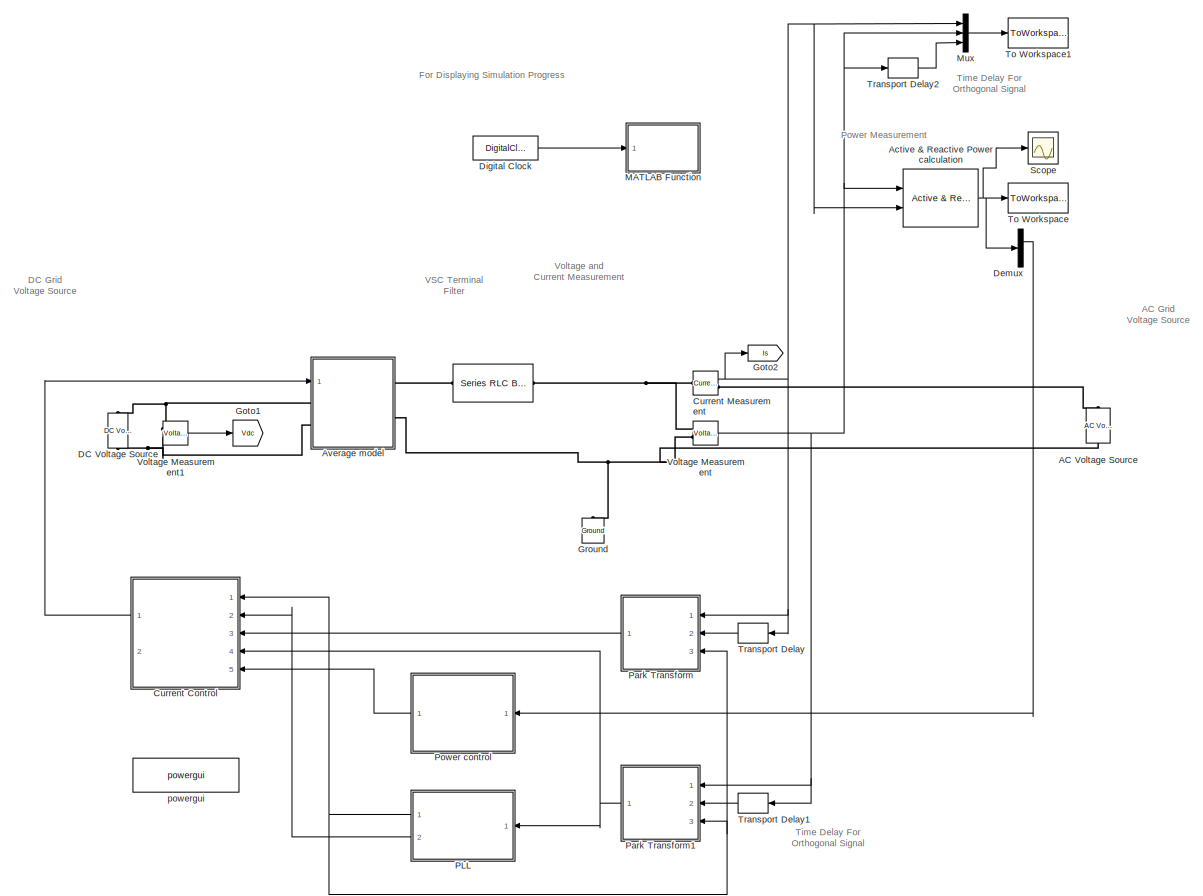
[diagram: root canvas - part 1/2, most of the canvas]
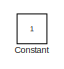
[diagram: root canvas - part 2/2, middle left region]
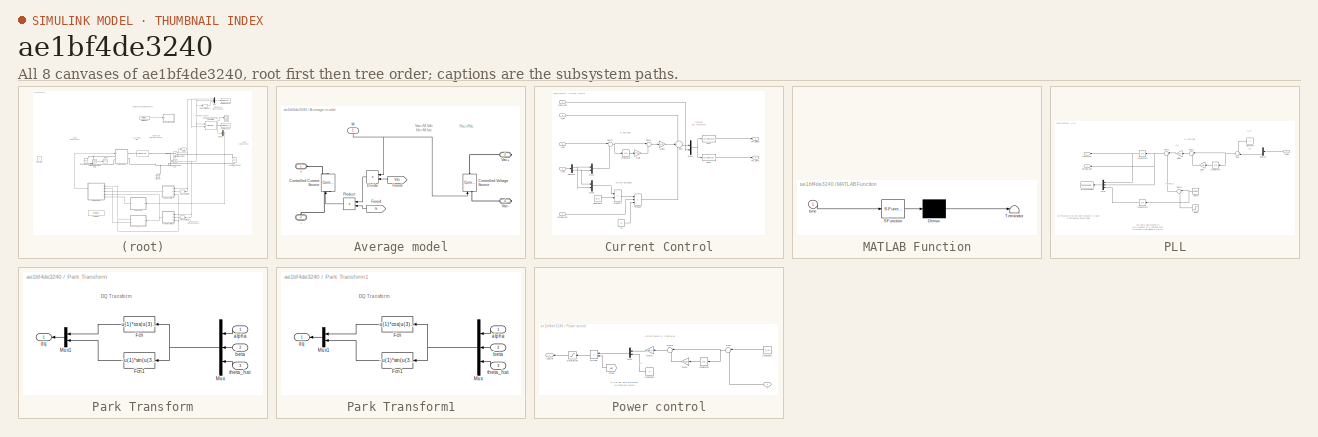
[diagram: thumbnail index - all 8 canvases of the model, root first then tree order]
MODEL slx_ae1bf4de3240
KIND model
CONFIG AbsTol = auto
CONFIG EnableMultiTasking = on
CONFIG FixedStep = 1e-5
CONFIG MaxStep = 1e-5
CONFIG MinStep = auto
CONFIG RelTol = 1e-5
CONFIG SampleTimeConstraint = Unconstrained
CONFIG Solver = FixedStepAuto
CONFIG SolverName = FixedStepAuto
CONFIG StartTime = 0.0
CONFIG StopTime = sim_time
BLOCK [Reference]    REF=powerlib/Elements/Series RLC Branch
  Ports = [0, 0, 0, 0, 0, 1, 1]
  SourceBlock = powerlib/Elements/Series RLC Branch
  SourceProductBaseCode = PS
  SourceProductName = Simscape Power Systems
  SourceType = Series RLC Branch
BLOCK [Reference] AC Voltage Source  REF=powerlib/Electrical
Sources/AC Voltage Source
  Ports = [0, 0, 0, 0, 0, 1, 1]
  SourceBlock = powerlib/Electrical\nSources/AC Voltage Source
  SourceProductBaseCode = PS
  SourceProductName = Simscape Power Systems
  SourceType = AC Voltage Source
BLOCK [Reference] Active & Reactive Power calculation  REF=powerlib_extras/Measurements/Active & Reactive
Power
  Ports = [2, 1]
  SourceBlock = powerlib_extras/Measurements/Active & Reactive\nPower
  SourceType = Active & Reactive Power
BLOCK [SubSystem] Average model
  Ports = [1, 0, 0, 0, 0, 2, 2]
  RequestExecContextInheritance = off
  Variant = off
BLOCK [PMIOPort] Average model/+
  Port = 1
  Side = Left
BLOCK [PMIOPort] Average model/-
  Port = 3
  Side = Left
BLOCK [Reference] Average model/Controlled Current Source  REF=powerlib/Electrical
Sources/Controlled Current Source
  Ports = [1, 0, 0, 0, 0, 1, 1]
  SourceBlock = powerlib/Electrical\nSources/Controlled Current Source
  SourceProductBaseCode = PS
  SourceProductName = Simscape Power Systems
  SourceType = Controlled Current Source
BLOCK [Reference] Average model/Controlled Voltage Source  REF=powerlib/Electrical
Sources/Controlled Voltage Source
  Ports = [1, 0, 0, 0, 0, 1, 1]
  SourceBlock = powerlib/Electrical\nSources/Controlled Voltage Source
  SourceProductBaseCode = PS
  SourceProductName = Simscape Power Systems
  SourceType = Controlled Voltage Source
BLOCK [Product] Average model/Divide
  InputSameDT = off
  Inputs = */
  OutDataTypeStr = Inherit: Inherit via internal rule
  Ports = [2, 1]
  RndMeth = Floor
  SaturateOnIntegerOverflow = off
BLOCK [From] Average model/From4
  GotoTag = Is
  TagVisibility = global
BLOCK [From] Average model/From6
  GotoTag = Vdc
  TagVisibility = global
BLOCK [Inport] Average model/M
  IconDisplay = Port number
BLOCK [Product] Average model/Product
  InputSameDT = off
  OutDataTypeStr = Inherit: Inherit via internal rule
  Ports = [2, 1]
  SaturateOnIntegerOverflow = off
BLOCK [PMIOPort] Average model/Vac+
  Port = 2
  Side = Right
BLOCK [PMIOPort] Average model/Vac-
  Port = 4
  Side = Right
BLOCK [Constant] Constant
  IOType = siggen
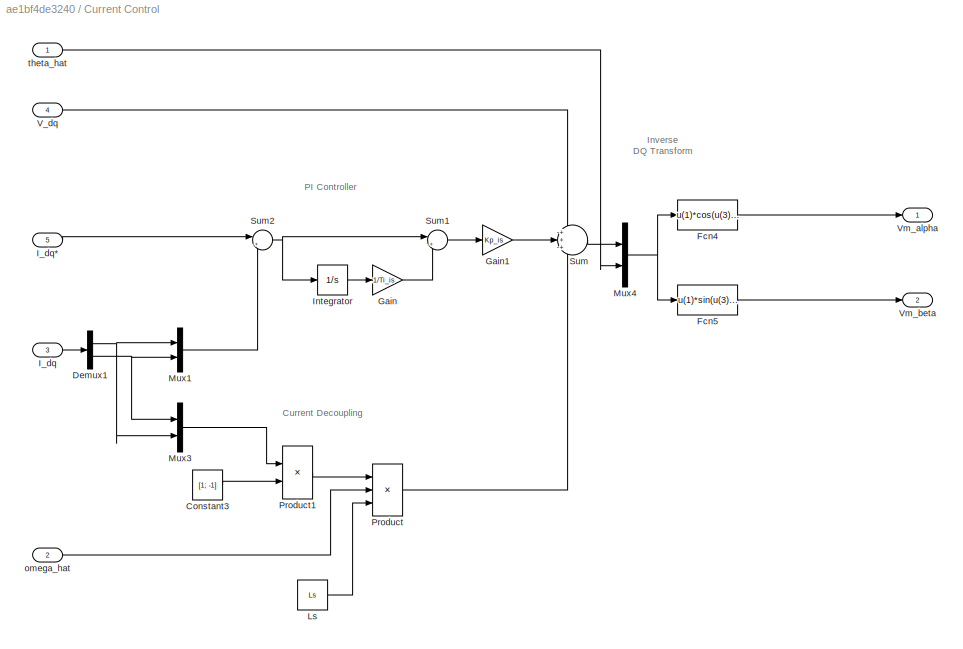
BLOCK [SubSystem] Current Control
  Ports = [5, 2]
  RequestExecContextInheritance = off
  Variant = off
BLOCK [Constant] Current Control/Constant3
  Value = [1; -1]
BLOCK [Demux] Current Control/Demux1
  DisplayOption = bar
  Outputs = 2
  Ports = [1, 2]
BLOCK [Fcn] Current Control/Fcn4
  Expr = u(1)*cos(u(3)) - u(2)*sin(u(3))
BLOCK [Fcn] Current Control/Fcn5
  Expr = u(1)*sin(u(3)) + u(2)*cos(u(3))
BLOCK [Gain] Current Control/Gain
  Gain = 1/Ti_is
  OutDataTypeStr = Inherit: Inherit via internal rule
  ParamDataTypeStr = Inherit: Inherit via internal rule
  SaturateOnIntegerOverflow = off
BLOCK [Gain] Current Control/Gain1
  Gain = Kp_is
  OutDataTypeStr = Inherit: Inherit via internal rule
  ParamDataTypeStr = Inherit: Inherit via internal rule
  SaturateOnIntegerOverflow = off
BLOCK [Inport] Current Control/I_dq
  IconDisplay = Port number
  Port = 3
BLOCK [Inport] Current Control/I_dq*
  IconDisplay = Port number
  Port = 5
BLOCK [Integrator] Current Control/Integrator
  Ports = [1, 1]
BLOCK [Constant] Current Control/Ls
  Value = Ls
BLOCK [Mux] Current Control/Mux1
  DisplayOption = bar
  Inputs = 2
  Ports = [2, 1]
BLOCK [Mux] Current Control/Mux3
  DisplayOption = bar
  Inputs = 2
  Ports = [2, 1]
BLOCK [Mux] Current Control/Mux4
  DisplayOption = bar
  Inputs = 2
  Ports = [2, 1]
BLOCK [Product] Current Control/Product
  InputSameDT = off
  Inputs = 3
  OutDataTypeStr = Inherit: Inherit via internal rule
  Ports = [3, 1]
  RndMeth = Floor
  SaturateOnIntegerOverflow = off
BLOCK [Product] Current Control/Product1
  InputSameDT = off
  OutDataTypeStr = Inherit: Inherit via internal rule
  Ports = [2, 1]
  RndMeth = Floor
  SaturateOnIntegerOverflow = off
BLOCK [Sum] Current Control/Sum
  IconShape = round
  InputSameDT = off
  Inputs = +++
  OutDataTypeStr = Inherit: Inherit via internal rule
  Ports = [3, 1]
  SaturateOnIntegerOverflow = off
BLOCK [Sum] Current Control/Sum1
  IconShape = round
  InputSameDT = off
  Inputs = |++
  OutDataTypeStr = Inherit: Inherit via internal rule
  Ports = [2, 1]
  SaturateOnIntegerOverflow = off
BLOCK [Sum] Current Control/Sum2
  IconShape = round
  InputSameDT = off
  Inputs = |+-
  OutDataTypeStr = Inherit: Inherit via internal rule
  Ports = [2, 1]
  SaturateOnIntegerOverflow = off
BLOCK [Inport] Current Control/V_dq
  IconDisplay = Port number
  Port = 4
BLOCK [Outport] Current Control/Vm_alpha
  IconDisplay = Port number
BLOCK [Outport] Current Control/Vm_beta
  IconDisplay = Port number
  Port = 2
BLOCK [Inport] Current Control/omega_hat
  IconDisplay = Port number
  Port = 2
BLOCK [Inport] Current Control/theta_hat
  IconDisplay = Port number
BLOCK [Reference] Current Measurement  REF=powerlib/Measurements/Current Measurement
  Ports = [0, 1, 0, 0, 0, 1, 1]
  SourceBlock = powerlib/Measurements/Current Measurement
  SourceProductBaseCode = PS
  SourceProductName = Simscape Power Systems
  SourceType = Current Measurement
  UserDataPersistent = on
BLOCK [Reference] DC Voltage Source  REF=powerlib/Electrical
Sources/DC Voltage Source
  Ports = [0, 0, 0, 0, 0, 1, 1]
  SourceBlock = powerlib/Electrical\nSources/DC Voltage Source
  SourceProductBaseCode = PS
  SourceProductName = Simscape Power Systems
  SourceType = DC Voltage Source
BLOCK [Demux] Demux
  DisplayOption = bar
  Outputs = 2
  Ports = [1, 2]
BLOCK [DigitalClock] Digital Clock
  SampleTime = 0.01
BLOCK [Goto] Goto1
  GotoTag = Vdc
  TagVisibility = global
BLOCK [Goto] Goto2
  GotoTag = Is
  TagVisibility = global
BLOCK [Reference] Ground  REF=powerlib/Elements/Ground
  Ports = [0, 0, 0, 0, 0, 1]
  SourceBlock = powerlib/Elements/Ground
  SourceProductBaseCode = PS
  SourceProductName = Simscape Power Systems
  SourceType = Ground
BLOCK [SubSystem] MATLAB Function
  ErrorFcn = Stateflow.Translate.translate
  PermitHierarchicalResolution = ExplicitOnly
  Ports = [1]
  RequestExecContextInheritance = off
  SFBlockType = MATLAB Function
  TreatAsAtomicUnit = on
  Variant = off
BLOCK [Demux] MATLAB Function/ Demux 
  Outputs = 1
  Ports = [1, 1]
BLOCK [S-Function] MATLAB Function/ SFunction 
  EnableBusSupport = on
  FunctionName = sf_sfun
  PortCounts = [1 1]
  Ports = [1, 1]
  SFcnIsStateOwnerBlock = off
  SFunctionDeploymentMode = off
  Tag = Stateflow S-Function VSC_Provoked_Cycle_Slip_AVG 2
BLOCK [Terminator] MATLAB Function/ Terminator 
BLOCK [Inport] MATLAB Function/time
  IconDisplay = Port number
BLOCK [Mux] Mux
  DisplayOption = bar
  Inputs = 3
  Ports = [3, 1]
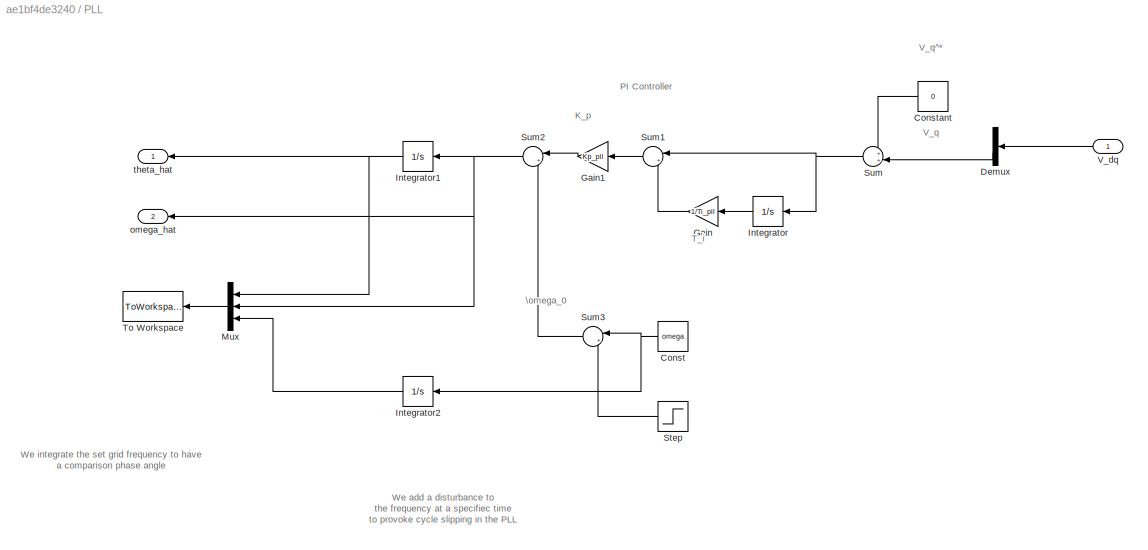
BLOCK [SubSystem] PLL
  Ports = [1, 2]
  RequestExecContextInheritance = off
  Variant = off
BLOCK [Constant] PLL/Const 
  Value = omega
BLOCK [Constant] PLL/Constant
  Value = 0
BLOCK [Demux] PLL/Demux
  DisplayOption = bar
  Outputs = 2
  Ports = [1, 2]
BLOCK [Gain] PLL/Gain
  Gain = 1/Ti_pll
  OutDataTypeStr = Inherit: Inherit via internal rule
  ParamDataTypeStr = Inherit: Inherit via internal rule
  SaturateOnIntegerOverflow = off
BLOCK [Gain] PLL/Gain1
  Gain = Kp_pll
  OutDataTypeStr = Inherit: Inherit via internal rule
  ParamDataTypeStr = Inherit: Inherit via internal rule
  SaturateOnIntegerOverflow = off
BLOCK [Integrator] PLL/Integrator
  Ports = [1, 1]
BLOCK [Integrator] PLL/Integrator1
  Ports = [1, 1]
BLOCK [Integrator] PLL/Integrator2
  Ports = [1, 1]
BLOCK [Mux] PLL/Mux
  DisplayOption = bar
  Inputs = 3
  Ports = [3, 1]
BLOCK [Step] PLL/Step
  After = omega0_step
  SampleTime = 0
  Time = omega0_step_time
BLOCK [Sum] PLL/Sum
  IconShape = round
  InputSameDT = off
  Inputs = ++|
  OutDataTypeStr = Inherit: Inherit via internal rule
  Ports = [2, 1]
  SaturateOnIntegerOverflow = off
BLOCK [Sum] PLL/Sum1
  IconShape = round
  InputSameDT = off
  Inputs = |++
  OutDataTypeStr = Inherit: Inherit via internal rule
  Ports = [2, 1]
  SaturateOnIntegerOverflow = off
BLOCK [Sum] PLL/Sum2
  IconShape = round
  InputSameDT = off
  Inputs = |++
  OutDataTypeStr = Inherit: Inherit via internal rule
  Ports = [2, 1]
  SaturateOnIntegerOverflow = off
BLOCK [Sum] PLL/Sum3
  IconShape = round
  InputSameDT = off
  Inputs = |++
  OutDataTypeStr = Inherit: Inherit via internal rule
  Ports = [2, 1]
  SaturateOnIntegerOverflow = off
BLOCK [ToWorkspace] PLL/To Workspace
  FixptAsFi = on
  MaxDataPoints = inf
  Ports = [1]
  SampleTime = -1
  Save2DSignal = 3-D array (concatenate along third dimension)
  SaveFormat = Timeseries
  VariableName = pll
BLOCK [Inport] PLL/V_dq
  IconDisplay = Port number
BLOCK [Outport] PLL/omega_hat
  IconDisplay = Port number
  Port = 2
BLOCK [Outport] PLL/theta_hat
  IconDisplay = Port number
BLOCK [SubSystem] Park Transform
  Ports = [3, 1]
  RequestExecContextInheritance = off
  Variant = off
BLOCK [Fcn] Park Transform/Fcn
  Expr = u(1)*cos(u(3)) + u(2)*sin(u(3))
BLOCK [Fcn] Park Transform/Fcn1
  Expr = -u(1)*sin(u(3)) + u(2)*cos(u(3))
BLOCK [Mux] Park Transform/Mux
  DisplayOption = bar
  Inputs = 3
  Ports = [3, 1]
BLOCK [Mux] Park Transform/Mux1
  DisplayOption = bar
  Inputs = 2
  Ports = [2, 1]
BLOCK [Inport] Park Transform/alpha
  IconDisplay = Port number
BLOCK [Inport] Park Transform/beta
  IconDisplay = Port number
  Port = 2
BLOCK [Outport] Park Transform/dq 
  IconDisplay = Port number
BLOCK [Inport] Park Transform/theta_hat
  IconDisplay = Port number
  Port = 3
BLOCK [SubSystem] Park Transform1
  Ports = [3, 1]
  RequestExecContextInheritance = off
  Variant = off
BLOCK [Fcn] Park Transform1/Fcn
  Expr = u(1)*cos(u(3)) + u(2)*sin(u(3))
BLOCK [Fcn] Park Transform1/Fcn1
  Expr = -u(1)*sin(u(3)) + u(2)*cos(u(3))
BLOCK [Mux] Park Transform1/Mux
  DisplayOption = bar
  Inputs = 3
  Ports = [3, 1]
BLOCK [Mux] Park Transform1/Mux1
  DisplayOption = bar
  Inputs = 2
  Ports = [2, 1]
BLOCK [Inport] Park Transform1/alpha
  IconDisplay = Port number
BLOCK [Inport] Park Transform1/beta
  IconDisplay = Port number
  Port = 2
BLOCK [Outport] Park Transform1/dq 
  IconDisplay = Port number
BLOCK [Inport] Park Transform1/theta_hat
  IconDisplay = Port number
  Port = 3
BLOCK [SubSystem] Power control
  Ports = [1, 1]
  RequestExecContextInheritance = off
  Variant = off
BLOCK [Constant] Power control/Constant1
  Value = P_ref
BLOCK [Constant] Power control/Constant2
  Value = 0
BLOCK [Product] Power control/Divide
  InputSameDT = off
  Inputs = */
  OutDataTypeStr = Inherit: Inherit via internal rule
  Ports = [2, 1]
  RndMeth = Floor
  SaturateOnIntegerOverflow = off
BLOCK [From] Power control/From
  GotoTag = Vdc
  TagVisibility = global
BLOCK [Gain] Power control/Gain
  Gain = 1/(Ti_p)
  OutDataTypeStr = Inherit: Inherit via internal rule
  ParamDataTypeStr = Inherit: Inherit via internal rule
  SaturateOnIntegerOverflow = off
BLOCK [Gain] Power control/Gain1
  Gain = Gain_p
  OutDataTypeStr = Inherit: Inherit via internal rule
  ParamDataTypeStr = Inherit: Inherit via internal rule
  SaturateOnIntegerOverflow = off
BLOCK [Outport] Power control/I_dq_ref
  IconDisplay = Port number
BLOCK [Integrator] Power control/Integrator
  Ports = [1, 1]
BLOCK [Mux] Power control/Mux1
  DisplayOption = bar
  Inputs = 2
  Ports = [2, 1]
BLOCK [Inport] Power control/P
  IconDisplay = Port number
BLOCK [Saturate] Power control/Saturation
  InputPortMap = u0
  LowerLimit = -cur_sat
  Ports = [1, 1]
  UpperLimit = cur_sat
BLOCK [Sum] Power control/Sum
  IconShape = round
  InputSameDT = off
  Inputs = |+-
  OutDataTypeStr = Inherit: Inherit via internal rule
  Ports = [2, 1]
  SaturateOnIntegerOverflow = off
BLOCK [Sum] Power control/Sum2
  IconShape = round
  InputSameDT = off
  Inputs = |++
  OutDataTypeStr = Inherit: Inherit via internal rule
  Ports = [2, 1]
  SaturateOnIntegerOverflow = off
BLOCK [Scope] Scope
  NumInputPorts = 1
  Ports = [1]
  ScopeSpecificationString = Simulink.scopes.TimeScopeBlockCfg('CurrentConfiguration', extmgr.ConfigurationSet(extmgr.Configuration('Core','General UI',true),extmgr.Configuration('Core','Source UI',true),extmgr.Configuration('Sources','WiredSimulink',true),extmgr.Configuration('Visuals','Time Domain',true,'SerializedDisplays',{struct('MinYLimReal','-218.02915','MaxYLimReal','1135.44827','YLabelReal','','MinYLimMag',' 0.00000'...<+1443ch>
BLOCK [ToWorkspace] To Workspace
  FixptAsFi = on
  MaxDataPoints = inf
  Ports = [1]
  SampleTime = -1
  Save2DSignal = 3-D array (concatenate along third dimension)
  SaveFormat = Timeseries
  VariableName = S
BLOCK [ToWorkspace] To Workspace1
  FixptAsFi = on
  MaxDataPoints = inf
  Ports = [1]
  SampleTime = -1
  Save2DSignal = 3-D array (concatenate along third dimension)
  SaveFormat = Timeseries
  VariableName = measurements
BLOCK [TransportDelay] Transport Delay
  DelayTime = 1/(4*f_grid)
  Ports = [1, 1]
BLOCK [TransportDelay] Transport Delay1
  DelayTime = 1/(4*f_grid)
  Ports = [1, 1]
BLOCK [TransportDelay] Transport Delay2
  DelayTime = 1/(4*f_grid)
  Ports = [1, 1]
BLOCK [Reference] Voltage Measurement  REF=powerlib/Measurements/Voltage Measurement
  Ports = [0, 1, 0, 0, 0, 2]
  SourceBlock = powerlib/Measurements/Voltage Measurement
  SourceProductBaseCode = PS
  SourceProductName = Simscape Power Systems
  SourceType = Voltage Measurement
  UserDataPersistent = on
BLOCK [Reference] Voltage Measurement1  REF=powerlib/Measurements/Voltage Measurement
  Ports = [0, 1, 0, 0, 0, 2]
  SourceBlock = powerlib/Measurements/Voltage Measurement
  SourceProductBaseCode = PS
  SourceProductName = Simscape Power Systems
  SourceType = Voltage Measurement
  UserDataPersistent = on
BLOCK [Reference] powergui  REF=powerlib/powergui
  Ports = []
  Priority = 1
  SourceBlock = powerlib/powergui
  SourceProductBaseCode = PS
  SourceProductName = Simscape Power Systems
  SourceType = PSB option menu block
ANNOTATION (root): DC Grid Voltage Source
ANNOTATION (root): Time Delay For Orthogonal Signal
ANNOTATION (root): VSC Terminal Filter
ANNOTATION (root): Voltage and Current Measurement
ANNOTATION (root): AC Grid Voltage Source
ANNOTATION (root): For Displaying Simulation Progress
ANNOTATION (root): Power Measurement
ANNOTATION Average model: Pac=Pdc
ANNOTATION Average model: Vac=M.Vdc Idc=M.Iac
ANNOTATION Current Control: Current Decoupling
ANNOTATION Current Control: Inverse DQ Transform
ANNOTATION Current Control: PI Controller
ANNOTATION PLL: PI Controller
ANNOTATION PLL: We add a disturbance to the frequency at a specifiec time to provoke cycle slipping in the PLL
ANNOTATION PLL: We integrate the set grid frequency to have a comparison phase angle
ANNOTATION PLL: K_p
ANNOTATION PLL: T_i
ANNOTATION PLL: V_q
ANNOTATION PLL: V_q^*
ANNOTATION PLL: \omega_0
ANNOTATION Park Transform: DQ Transform
ANNOTATION Park Transform1: DQ Transform
ANNOTATION Power control: Active Power PI Controller
ANNOTATION Power control: Q-Current Zero Reference (0 Reactive Power)
ANNOTATION Power control: Q^*
NET Active & Reactive Power calculation:1 -> Demux:1, Scope:1, To Workspace:1
LINE Average model/Divide:1 -> Average model/Product:1
LINE Average model/From4:1 -> Average model/Product:2
LINE Average model/From6:1 -> Average model/Divide:2
NET Average model/M:1 -> Average model/Controlled Voltage Source:1, Average model/Divide:1
LINE Average model/Product:1 -> Average model/Controlled Current Source:1
LINE Current Control/Constant3:1 -> Current Control/Product1:2
NET Current Control/Demux1:1 -> Current Control/Mux1:1, Current Control/Mux3:2
NET Current Control/Demux1:2 -> Current Control/Mux1:2, Current Control/Mux3:1
LINE Current Control/Fcn4:1 -> Current Control/Vm_alpha:1
LINE Current Control/Fcn5:1 -> Current Control/Vm_beta:1
LINE Current Control/Gain1:1 -> Current Control/Sum:2
LINE Current Control/Gain:1 -> Current Control/Sum1:2
LINE Current Control/I_dq*:1 -> Current Control/Sum2:1
LINE Current Control/I_dq:1 -> Current Control/Demux1:1
LINE Current Control/Integrator:1 -> Current Control/Gain:1
LINE Current Control/Ls:1 -> Current Control/Product:3
LINE Current Control/Mux1:1 -> Current Control/Sum2:2
LINE Current Control/Mux3:1 -> Current Control/Product1:1
NET Current Control/Mux4:1 -> Current Control/Fcn4:1, Current Control/Fcn5:1
LINE Current Control/Product1:1 -> Current Control/Product:1
LINE Current Control/Product:1 -> Current Control/Sum:3
LINE Current Control/Sum1:1 -> Current Control/Gain1:1
NET Current Control/Sum2:1 -> Current Control/Integrator:1, Current Control/Sum1:1
LINE Current Control/Sum:1 -> Current Control/Mux4:1
LINE Current Control/V_dq:1 -> Current Control/Sum:1
LINE Current Control/omega_hat:1 -> Current Control/Product:2
LINE Current Control/theta_hat:1 -> Current Control/Mux4:2
LINE Current Control:1 -> Average model:1
NET Current Measurement:1 -> Active & Reactive Power calculation:2, Goto2:1, Mux:1, Park Transform:1, Transport Delay:1
LINE Demux:1 -> Power control:1
LINE Digital Clock:1 -> MATLAB Function:1
LINE Mux:1 -> To Workspace1:1
NET PLL/Const :1 -> PLL/Integrator2:1, PLL/Sum3:1
LINE PLL/Constant:1 -> PLL/Sum:1
LINE PLL/Demux:2 -> PLL/Sum:2
LINE PLL/Gain1:1 -> PLL/Sum2:1
LINE PLL/Gain:1 -> PLL/Sum1:2
NET PLL/Integrator1:1 -> PLL/Mux:1, PLL/theta_hat:1
LINE PLL/Integrator2:1 -> PLL/Mux:3
LINE PLL/Integrator:1 -> PLL/Gain:1
LINE PLL/Mux:1 -> PLL/To Workspace:1
LINE PLL/Step:1 -> PLL/Sum3:2
LINE PLL/Sum1:1 -> PLL/Gain1:1
NET PLL/Sum2:1 -> PLL/Integrator1:1, PLL/Mux:2, PLL/omega_hat:1
LINE PLL/Sum3:1 -> PLL/Sum2:2
NET PLL/Sum:1 -> PLL/Integrator:1, PLL/Sum1:1
LINE PLL/V_dq:1 -> PLL/Demux:1
NET PLL:1 -> Current Control:1, Park Transform1:3, Park Transform:3
LINE PLL:2 -> Current Control:2
LINE Park Transform/Fcn1:1 -> Park Transform/Mux1:2
LINE Park Transform/Fcn:1 -> Park Transform/Mux1:1
LINE Park Transform/Mux1:1 -> Park Transform/dq :1
NET Park Transform/Mux:1 -> Park Transform/Fcn1:1, Park Transform/Fcn:1
LINE Park Transform/alpha:1 -> Park Transform/Mux:1
LINE Park Transform/beta:1 -> Park Transform/Mux:2
LINE Park Transform/theta_hat:1 -> Park Transform/Mux:3
LINE Park Transform1/Fcn1:1 -> Park Transform1/Mux1:2
LINE Park Transform1/Fcn:1 -> Park Transform1/Mux1:1
LINE Park Transform1/Mux1:1 -> Park Transform1/dq :1
NET Park Transform1/Mux:1 -> Park Transform1/Fcn1:1, Park Transform1/Fcn:1
LINE Park Transform1/alpha:1 -> Park Transform1/Mux:1
LINE Park Transform1/beta:1 -> Park Transform1/Mux:2
LINE Park Transform1/theta_hat:1 -> Park Transform1/Mux:3
NET Park Transform1:1 -> Current Control:4, PLL:1
LINE Park Transform:1 -> Current Control:3
LINE Power control/Constant1:1 -> Power control/Sum:1
LINE Power control/Constant2:1 -> Power control/Mux1:2
LINE Power control/Divide:1 -> Power control/Saturation:1
LINE Power control/From:1 -> Power control/Divide:2
LINE Power control/Gain1:1 -> Power control/Mux1:1
LINE Power control/Gain:1 -> Power control/Sum2:2
LINE Power control/Integrator:1 -> Power control/Gain:1
LINE Power control/Mux1:1 -> Power control/Divide:1
LINE Power control/P:1 -> Power control/Sum:2
LINE Power control/Saturation:1 -> Power control/I_dq_ref:1
LINE Power control/Sum2:1 -> Power control/Gain1:1
NET Power control/Sum:1 -> Power control/Integrator:1, Power control/Sum2:1
LINE Power control:1 -> Current Control:5
LINE Transport Delay1:1 -> Park Transform1:2
LINE Transport Delay2:1 -> Mux:3
LINE Transport Delay:1 -> Park Transform:2
LINE Voltage Measurement1:1 -> Goto1:1
NET Voltage Measurement:1 -> Active & Reactive Power calculation:1, Mux:2, Park Transform1:1, Transport Delay1:1, Transport Delay2:1
PLINE  :LConn1 -- Average model:RConn1
PNET net1:  :RConn1 -- Current Measurement:LConn1 -- Voltage Measurement:LConn1
PNET net2: AC Voltage Source:LConn1 -- Average model:RConn2 -- Ground:LConn1 -- Voltage Measurement:LConn2
PLINE AC Voltage Source:RConn1 -- Current Measurement:RConn1
PLINE Average model/+:RConn1 -- Average model/Controlled Current Source:RConn1
PLINE Average model/-:RConn1 -- Average model/Controlled Current Source:LConn1
PLINE Average model/Controlled Voltage Source:LConn1 -- Average model/Vac-:RConn1
PLINE Average model/Controlled Voltage Source:RConn1 -- Average model/Vac+:RConn1
PNET net3: Average model:LConn1 -- DC Voltage Source:RConn1 -- Voltage Measurement1:LConn1
PNET net4: Average model:LConn2 -- DC Voltage Source:LConn1 -- Voltage Measurement1:LConn2
note: NET lines group one-source signal fan-out (src -> all destinations, sorted); 1:1 wires keep LINE; PNET lines group multi-terminal physical nets as a canonical sorted terminal list (undirected conserving connections); 2-terminal nets keep the pairwise PLINE form
CHART MATLAB Function states=1 transitions=1
  STATE_LABEL 'eML_blk_kernel()'
  STATE_LABEL "SCRIPT:\nfunction fcn(time)\n    fprintf('#######    Simulation currently at %.2f seconds    #######\\n', time);\nend\n"
